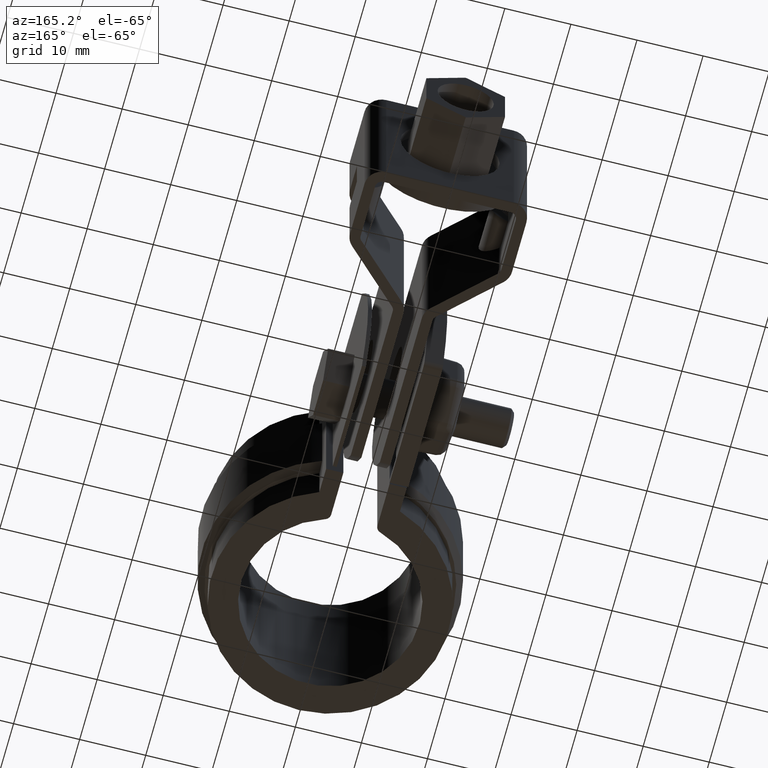
[diagram: clean part render]
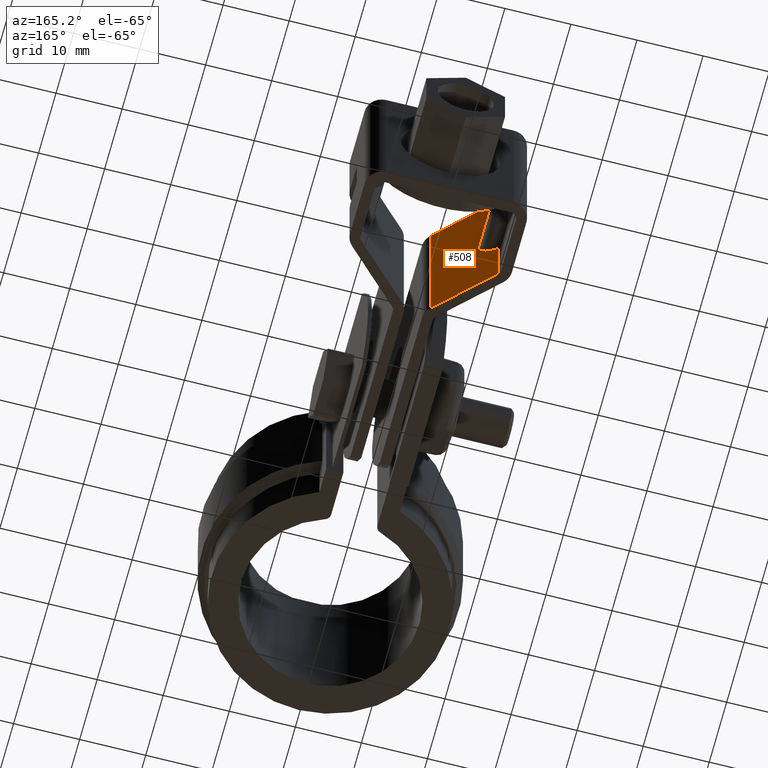
[diagram: same view with one face highlighted and labeled with its STEP entity id]
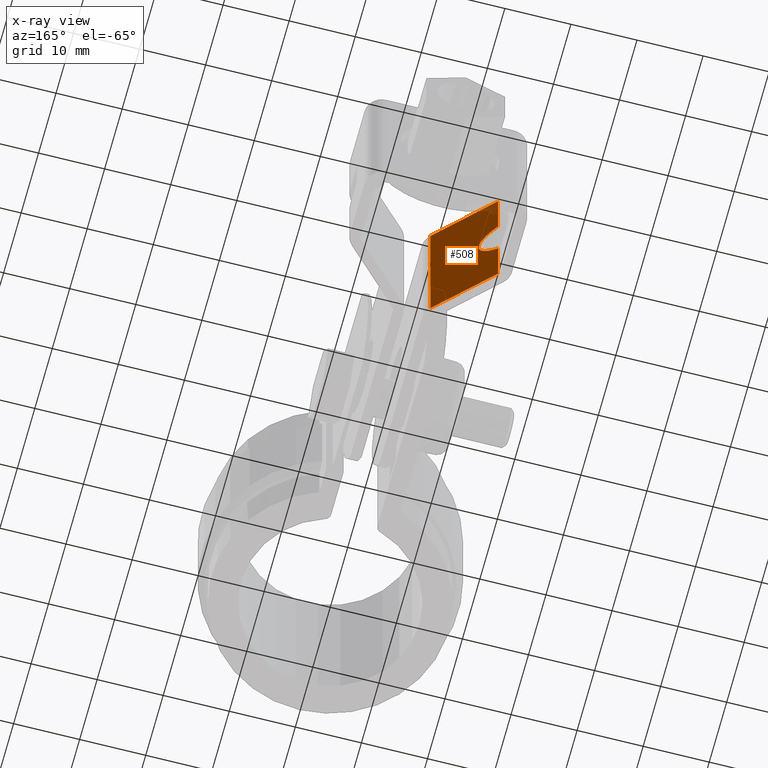
[diagram: x-ray of the same camera — body ghosted, the highlighted face saturated]
A machine part, auxiliary view. The second image highlights one B-rep face of the part: STEP entity #508.
The next image is the same camera in x-ray: the body ghosted, the highlighted face saturated — about 3% of this face is hidden behind the body in this view.
In plain terms, the highlighted planar face has unit normal (0.6983, 0.7158, 0).
Its self-contained STEP definition (entity closure, byte-faithful):
#508 = ADVANCED_FACE( '', ( #992 ), #993, .T. );
#992 = FACE_OUTER_BOUND( '', #2073, .T. );
#993 = PLANE( '', #2074 );
#2073 = EDGE_LOOP( '', ( #4477, #4478, #4479, #4480, #4481, #4482 ) );
#2074 = AXIS2_PLACEMENT_3D( '', #4483, #4484, #4485 );
#4477 = ORIENTED_EDGE( '', *, *, #6314, .T. );
#4478 = ORIENTED_EDGE( '', *, *, #6389, .T. );
#4479 = ORIENTED_EDGE( '', *, *, #6423, .F. );
#4480 = ORIENTED_EDGE( '', *, *, #6420, .F. );
#4481 = ORIENTED_EDGE( '', *, *, #6403, .F. );
#4482 = ORIENTED_EDGE( '', *, *, #6424, .F. );
#4483 = CARTESIAN_POINT( '', ( -10.3483237298784, 56.9793145855284, 1.65216312852934E-008 ) );
#4484 = DIRECTION( '', ( 0.698323836099389, 0.715781963963492, 1.20787709048751E-010 ) );
#4485 = DIRECTION( '', ( -0.715781963963492, 0.698323836099389, 6.44548234189015E-011 ) );
#6314 = EDGE_CURVE( '', #7454, #7452, #7455, .T. );
#6389 = EDGE_CURVE( '', #7452, #7583, #7586, .F. );
#6403 = EDGE_CURVE( '', #7608, #7599, #7610, .T. );
#6420 = EDGE_CURVE( '', #7599, #7637, #7638, .T. );
#6423 = EDGE_CURVE( '', #7637, #7583, #7642, .T. );
#6424 = EDGE_CURVE( '', #7454, #7608, #7643, .T. );
#7452 = VERTEX_POINT( '', #10481 );
#7454 = VERTEX_POINT( '', #10483 );
#7455 = LINE( '', #10484, #10485 );
#7583 = VERTEX_POINT( '', #10683 );
#7586 = LINE( '', #10686, #10687 );
#7599 = VERTEX_POINT( '', #10704 );
#7608 = VERTEX_POINT( '', #10720 );
#7610 = ELLIPSE( '', #10727, 5.93756228945901, 4.24999999999996 );
#7637 = VERTEX_POINT( '', #10778 );
#7638 = LINE( '', #10779, #10780 );
#7642 = LINE( '', #10785, #10786 );
#7643 = LINE( '', #10787, #10788 );
#10481 = CARTESIAN_POINT( '', ( -2.18435792829886, 49.0144702567127, 1.57864693539622E-008 ) );
#10483 = CARTESIAN_POINT( '', ( -10.3483237298784, 56.9793145855284, 1.65216312852934E-008 ) );
#10484 = CARTESIAN_POINT( '', ( -10.3483237298784, 56.9793145855284, 1.65216312852934E-008 ) );
#10485 = VECTOR( '', #12361, 1000.00000000000 );
#10683 = CARTESIAN_POINT( '', ( -2.18435792734353, 49.0144702599994, -24.9999999842135 ) );
#10686 = CARTESIAN_POINT( '', ( -2.18435792829886, 49.0144702567127, 1.57864693539622E-008 ) );
#10687 = VECTOR( '', #12484, 1000.00000000000 );
#10704 = CARTESIAN_POINT( '', ( -10.3483237292555, 56.9793145876715, -16.3008061828903 ) );
#10720 = CARTESIAN_POINT( '', ( -10.3483237295460, 56.9793145866721, -8.69919378406639 ) );
#10727 = AXIS2_PLACEMENT_3D( '', #12506, #12507, #12508 );
#10778 = CARTESIAN_POINT( '', ( -10.3483237289231, 56.9793145888151, -24.9999999834784 ) );
#10779 = CARTESIAN_POINT( '', ( -10.3483237298784, 56.9793145855284, 1.65216312852934E-008 ) );
#10780 = VECTOR( '', #12535, 1000.00000000000 );
#10785 = CARTESIAN_POINT( '', ( -10.3483237289231, 56.9793145888151, -24.9999999834784 ) );
#10786 = VECTOR( '', #12540, 1000.00000000000 );
#10787 = CARTESIAN_POINT( '', ( -10.3483237298784, 56.9793145855284, 1.65216312852934E-008 ) );
#10788 = VECTOR( '', #12541, 1000.00000000000 );
#12361 = DIRECTION( '', ( 0.715781963963492, -0.698323836099389, -6.44548234189015E-011 ) );
#12484 = DIRECTION( '', ( -3.82132750125618E-011, -1.31468062887455E-010, 1.00000000000000 ) );
#12506 = CARTESIAN_POINT( '', ( -12.2499998923956, 58.8346083218838, -12.4999999833071 ) );
#12507 = DIRECTION( '', ( 0.698323836099389, 0.715781963963492, 1.20787709048751E-010 ) );
#12508 = DIRECTION( '', ( -0.715781963963492, 0.698323836099389, 6.44548234189015E-011 ) );
#12535 = DIRECTION( '', ( 3.82133362428794E-011, 1.31468003150562E-010, -1.00000000000000 ) );
#12540 = DIRECTION( '', ( 0.715781963963492, -0.698323836099389, -6.44548234189015E-011 ) );
#12541 = DIRECTION( '', ( 3.82133362428794E-011, 1.31468003150562E-010, -1.00000000000000 ) );